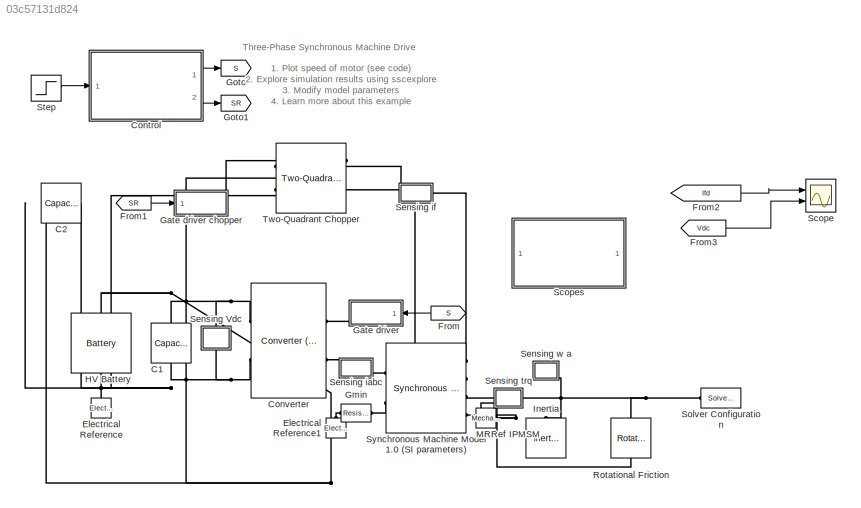
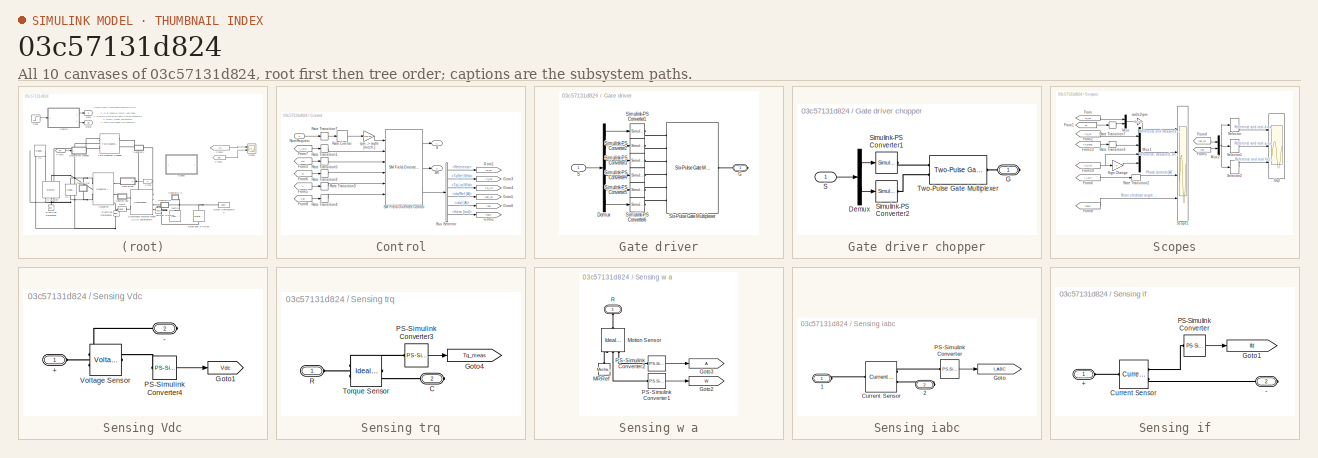
[diagram: thumbnail index - all 10 canvases of the model, root first then tree order]
MODEL slx_03c57131d824
KIND model
CONFIG AbsTol = auto
CONFIG EnableMultiTasking = on
CONFIG FixedStep = Ts
CONFIG MaxStep = auto
CONFIG MinStep = auto
CONFIG PreLoadFcn = ee_sm_drive_data;
CONFIG RelTol = 1e-3
CONFIG SampleTimeConstraint = Unconstrained
CONFIG SolverName = FixedStepDiscrete
CONFIG StartTime = 0.0
CONFIG StopFcn = ee_addSimlogTimeStamp(bdroot)
CONFIG StopTime = 1
BLOCK [Reference] C1  REF=fl_lib/Electrical/Electrical Elements/Capacitor
  NameLocation = left
  Ports = [0, 0, 0, 0, 0, 1, 1]
  SourceBlock = fl_lib/Electrical/Electrical Elements/Capacitor
  SourceProductBaseCode = SS
  SourceType = Capacitor
BLOCK [Reference] C2  REF=fl_lib/Electrical/Electrical Elements/Capacitor
  Ports = [0, 0, 0, 0, 0, 1, 1]
  SourceBlock = fl_lib/Electrical/Electrical Elements/Capacitor
  SourceProductBaseCode = SS
  SourceType = Capacitor
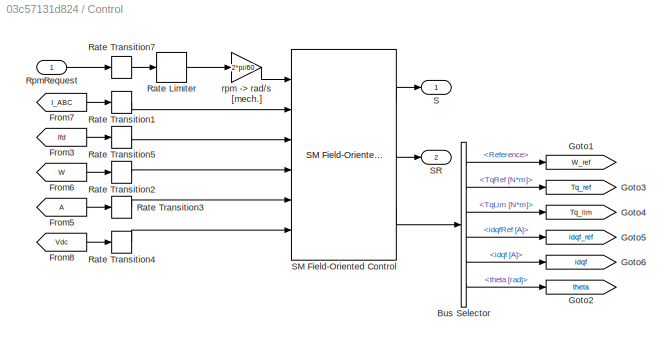
BLOCK [SubSystem] Control
  Ports = [1, 2]
  RequestExecContextInheritance = off
BLOCK [BusSelector] Control/Bus Selector
  OutputSignals = Reference,TqRef [N*m],TqLim [N*m],idqfRef [A],idqf [A],theta [rad]
  Ports = [1, 6]
BLOCK [From] Control/From3
  GotoTag = Ifd
  TagVisibility = global
BLOCK [From] Control/From5
  TagVisibility = global
BLOCK [From] Control/From6
  GotoTag = W
  TagVisibility = global
BLOCK [From] Control/From7
  GotoTag = I_ABC
  TagVisibility = global
BLOCK [From] Control/From8
  GotoTag = Vdc
  TagVisibility = global
BLOCK [Goto] Control/Goto1
  GotoTag = W_ref
  TagVisibility = global
BLOCK [Goto] Control/Goto2
  GotoTag = theta
  TagVisibility = global
BLOCK [Goto] Control/Goto3
  GotoTag = Tq_ref
  TagVisibility = global
BLOCK [Goto] Control/Goto4
  GotoTag = Tq_lim
  TagVisibility = global
BLOCK [Goto] Control/Goto5
  GotoTag = idqf_ref
  TagVisibility = global
BLOCK [Goto] Control/Goto6
  GotoTag = idqf
  TagVisibility = global
BLOCK [RateLimiter] Control/Rate Limiter
  FallingSlewLimit = -4000
  NameLocation = top
  RisingSlewLimit = 4000
  SampleTimeMode = inherited
BLOCK [RateTransition] Control/Rate Transition1
  OutPortSampleTime = Tsc
BLOCK [RateTransition] Control/Rate Transition2
  OutPortSampleTime = Tsc
BLOCK [RateTransition] Control/Rate Transition3
  OutPortSampleTime = Tsc
BLOCK [RateTransition] Control/Rate Transition4
  OutPortSampleTime = Tsc
BLOCK [RateTransition] Control/Rate Transition5
  OutPortSampleTime = Tsc
BLOCK [RateTransition] Control/Rate Transition7
  OutPortSampleTime = Tsc
BLOCK [Inport] Control/RpmRequest
BLOCK [Outport] Control/S
  VectorParamsAs1DForOutWhenUnconnected = off
BLOCK [Reference] Control/SM Field-Oriented Control  REF=eeSmFieldOrientedControl/SM Field-Oriented
Control
  Ports = [6, 3]
  SourceBlock = eeSmFieldOrientedControl/SM Field-Oriented\nControl
  SourceProductBaseCode = PS
  SourceType = SM Field-Oriented Control
BLOCK [Outport] Control/SR
  Port = 2
  VectorParamsAs1DForOutWhenUnconnected = off
BLOCK [Gain] Control/rpm -> rad//s [mech.]
  Gain = 2*pi/60
  NameLocation = top
BLOCK [Reference] Converter  REF=ee_lib/Semiconductors &
Converters/Converters/Converter
(Three-Phase)
  Ports = [0, 0, 0, 0, 0, 2, 2]
  SourceBlock = ee_lib/Semiconductors &\nConverters/Converters/Converter\n(Three-Phase)
  SourceProductBaseCode = PS
  SourceType = Converter\n(Three-Phase)
BLOCK [Reference] Electrical Reference  REF=fl_lib/Electrical/Electrical Elements/Electrical Reference
  NameLocation = right
  Ports = [0, 0, 0, 0, 0, 1]
  SourceBlock = fl_lib/Electrical/Electrical Elements/Electrical Reference
  SourceProductBaseCode = SS
  SourceType = Electrical Reference
BLOCK [Reference] Electrical Reference1  REF=fl_lib/Electrical/Electrical Elements/Electrical Reference
  NameLocation = right
  Ports = [0, 0, 0, 0, 0, 1]
  SourceBlock = fl_lib/Electrical/Electrical Elements/Electrical Reference
  SourceProductBaseCode = SS
  SourceType = Electrical Reference
BLOCK [From] From
  GotoTag = S
  TagVisibility = global
BLOCK [From] From1
  GotoTag = SR
  TagVisibility = global
BLOCK [From] From2
  GotoTag = Ifd
  TagVisibility = global
BLOCK [From] From3
  GotoTag = Vdc
  TagVisibility = global
BLOCK [SubSystem] Gate driver
  Ports = [1, 0, 0, 0, 0, 0, 1]
  RequestExecContextInheritance = off
BLOCK [SubSystem] Gate driver chopper
  Ports = [1, 0, 0, 0, 0, 0, 1]
  RequestExecContextInheritance = off
BLOCK [Demux] Gate driver chopper/Demux
  Outputs = 2
  Ports = [1, 2]
BLOCK [PMIOPort] Gate driver chopper/G
  Side = Right
BLOCK [Inport] Gate driver chopper/S
BLOCK [Reference] Gate driver chopper/Simulink-PS Converter1  REF=nesl_utility/Simulink-PS
Converter
  Ports = [1, 0, 0, 0, 0, 0, 1]
  SourceBlock = nesl_utility/Simulink-PS\nConverter
  SourceProductBaseCode = PW,SS
  SourceType = Simulink-PS\nConverter
BLOCK [Reference] Gate driver chopper/Simulink-PS Converter2  REF=nesl_utility/Simulink-PS
Converter
  Ports = [1, 0, 0, 0, 0, 0, 1]
  SourceBlock = nesl_utility/Simulink-PS\nConverter
  SourceProductBaseCode = PW,SS
  SourceType = Simulink-PS\nConverter
BLOCK [Reference] Gate driver chopper/Two-Pulse Gate Multiplexer  REF=ee_lib/Semiconductors &
Converters/Converters/Two-Pulse Gate
Multiplexer
  Ports = [0, 0, 0, 0, 0, 2, 1]
  SourceBlock = ee_lib/Semiconductors &\nConverters/Converters/Two-Pulse Gate\nMultiplexer
  SourceProductBaseCode = PS
  SourceType = Two-Pulse Gate\nMultiplexer
BLOCK [Demux] Gate driver/Demux
  Outputs = 6
  Ports = [1, 6]
BLOCK [PMIOPort] Gate driver/G
  Side = Right
BLOCK [Inport] Gate driver/S
BLOCK [Reference] Gate driver/Simulink-PS Converter1  REF=nesl_utility/Simulink-PS
Converter
  Ports = [1, 0, 0, 0, 0, 0, 1]
  SourceBlock = nesl_utility/Simulink-PS\nConverter
  SourceProductBaseCode = PW,SS
  SourceType = Simulink-PS\nConverter
BLOCK [Reference] Gate driver/Simulink-PS Converter2  REF=nesl_utility/Simulink-PS
Converter
  Ports = [1, 0, 0, 0, 0, 0, 1]
  SourceBlock = nesl_utility/Simulink-PS\nConverter
  SourceProductBaseCode = PW,SS
  SourceType = Simulink-PS\nConverter
BLOCK [Reference] Gate driver/Simulink-PS Converter3  REF=nesl_utility/Simulink-PS
Converter
  Ports = [1, 0, 0, 0, 0, 0, 1]
  SourceBlock = nesl_utility/Simulink-PS\nConverter
  SourceProductBaseCode = PW,SS
  SourceType = Simulink-PS\nConverter
BLOCK [Reference] Gate driver/Simulink-PS Converter4  REF=nesl_utility/Simulink-PS
Converter
  Ports = [1, 0, 0, 0, 0, 0, 1]
  SourceBlock = nesl_utility/Simulink-PS\nConverter
  SourceProductBaseCode = PW,SS
  SourceType = Simulink-PS\nConverter
BLOCK [Reference] Gate driver/Simulink-PS Converter5  REF=nesl_utility/Simulink-PS
Converter
  Ports = [1, 0, 0, 0, 0, 0, 1]
  SourceBlock = nesl_utility/Simulink-PS\nConverter
  SourceProductBaseCode = PW,SS
  SourceType = Simulink-PS\nConverter
BLOCK [Reference] Gate driver/Simulink-PS Converter6  REF=nesl_utility/Simulink-PS
Converter
  Ports = [1, 0, 0, 0, 0, 0, 1]
  SourceBlock = nesl_utility/Simulink-PS\nConverter
  SourceProductBaseCode = PW,SS
  SourceType = Simulink-PS\nConverter
BLOCK [Reference] Gate driver/Six-Pulse Gate Multiplexer  REF=ee_lib/Semiconductors &
Converters/Converters/Six-Pulse Gate
Multiplexer
  Ports = [0, 0, 0, 0, 0, 6, 1]
  SourceBlock = ee_lib/Semiconductors &\nConverters/Converters/Six-Pulse Gate\nMultiplexer
  SourceProductBaseCode = PS
  SourceType = Six-Pulse Gate\nMultiplexer
BLOCK [Reference] Gmin  REF=fl_lib/Electrical/Electrical Elements/Resistor
  Ports = [0, 0, 0, 0, 0, 1, 1]
  SourceBlock = fl_lib/Electrical/Electrical Elements/Resistor
  SourceProductBaseCode = SS
  SourceType = Resistor
BLOCK [Goto] Goto
  GotoTag = S
  TagVisibility = global
BLOCK [Goto] Goto1
  GotoTag = SR
  TagVisibility = global
BLOCK [Reference] HV Battery  REF=ee_lib/Sources/Battery
  NameLocation = left
  Ports = [0, 0, 0, 0, 0, 1, 1]
  SourceBlock = ee_lib/Sources/Battery
  SourceProductBaseCode = PS
  SourceType = Battery
BLOCK [Reference] Inertia  REF=fl_lib/Mechanical/Rotational Elements/Inertia
  NameLocation = left
  Ports = [0, 0, 0, 0, 0, 1]
  SourceBlock = fl_lib/Mechanical/Rotational Elements/Inertia
  SourceProductBaseCode = SS
  SourceType = Inertia
BLOCK [Reference] MRRef IPMSM  REF=fl_lib/Mechanical/Rotational Elements/Mechanical
Rotational Reference
  NameLocation = top
  Ports = [0, 0, 0, 0, 0, 1]
  SourceBlock = fl_lib/Mechanical/Rotational Elements/Mechanical\nRotational Reference
  SourceProductBaseCode = SS
  SourceType = Mechanical\nRotational Reference
BLOCK [Reference] Rotational Friction  REF=fl_lib/Mechanical/Rotational Elements/Rotational Friction
  NameLocation = left
  Ports = [0, 0, 0, 0, 0, 1, 1]
  SourceBlock = fl_lib/Mechanical/Rotational Elements/Rotational Friction
  SourceProductBaseCode = SS
  SourceType = Rotational Friction
BLOCK [Scope] Scope
  Floating = off
  NumInputPorts = 2
  Ports = [2]
  ScopeSpecificationString = Simulink.scopes.TimeScopeBlockCfg('CurrentConfiguration', extmgr.ConfigurationSet(extmgr.Configuration('Core','General UI',true),extmgr.Configuration('Core','Source UI',true),extmgr.Configuration('Sources','WiredSimulink',true,'DataLoggingVariableName','ScopeData1'),extmgr.Configuration('Visuals','Time Domain',true,'SerializedDisplays',{struct('MinYLimReal','13.21811','MaxYLimReal','21.69669','YLa...<+1455ch>
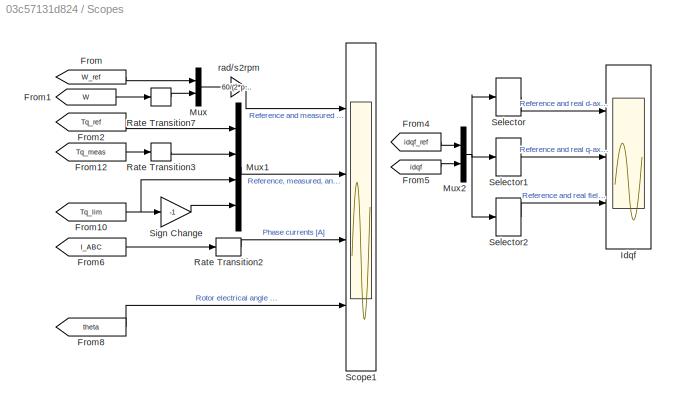
BLOCK [SubSystem] Scopes
  Ports = []
  RequestExecContextInheritance = off
BLOCK [From] Scopes/From
  GotoTag = W_ref
  TagVisibility = global
BLOCK [From] Scopes/From1
  GotoTag = W
  TagVisibility = global
BLOCK [From] Scopes/From10
  GotoTag = Tq_lim
  TagVisibility = global
BLOCK [From] Scopes/From12
  GotoTag = Tq_meas
  TagVisibility = global
BLOCK [From] Scopes/From2
  GotoTag = Tq_ref
  TagVisibility = global
BLOCK [From] Scopes/From4
  GotoTag = idqf_ref
  TagVisibility = global
BLOCK [From] Scopes/From5
  GotoTag = idqf
  TagVisibility = global
BLOCK [From] Scopes/From6
  GotoTag = I_ABC
  TagVisibility = global
BLOCK [From] Scopes/From8
  GotoTag = theta
  TagVisibility = global
BLOCK [Scope] Scopes/Idqf 
  Floating = off
  NumInputPorts = 3
  Ports = [3]
  ScopeSpecificationString = Simulink.scopes.TimeScopeBlockCfg('CurrentConfiguration', extmgr.ConfigurationSet(extmgr.Configuration('Core','General UI',true),extmgr.Configuration('Core','Source UI',true),extmgr.Configuration('Sources','WiredSimulink',true,'DataLoggingVariableName','ScopeData1','DataLoggingSaveFormat','Array','DataLoggingDecimation','1','DataLoggingDecimateData',true),extmgr.Configuration('Visuals','Time Domai...<+3040ch>
BLOCK [Mux] Scopes/Mux
  DisplayOption = bar
  Inputs = 2
  Ports = [2, 1]
BLOCK [Mux] Scopes/Mux1
  DisplayOption = bar
  Ports = [4, 1]
BLOCK [Mux] Scopes/Mux2
  DisplayOption = bar
  Inputs = 2
  Ports = [2, 1]
BLOCK [RateTransition] Scopes/Rate Transition2
BLOCK [RateTransition] Scopes/Rate Transition3
BLOCK [RateTransition] Scopes/Rate Transition7
BLOCK [Scope] Scopes/Scope1
  Floating = off
  NumInputPorts = 4
  Ports = [4]
  ScopeSpecificationString = Simulink.scopes.TimeScopeBlockCfg('CurrentConfiguration', extmgr.ConfigurationSet(extmgr.Configuration('Core','General UI',true),extmgr.Configuration('Core','Source UI',true),extmgr.Configuration('Sources','WiredSimulink',true,'DataLoggingVariableName','ScopeData2','DataLoggingSaveFormat','Array','DataLoggingDecimation','1','DataLoggingDecimateData',true),extmgr.Configuration('Visuals','Time Domai...<+3908ch>
BLOCK [Selector] Scopes/Selector
  IndexOptions = Index vector (dialog)
  Indices = [1 4]
  InputPortWidth = 6
  OutputSizes = 1
  Ports = [1, 1]
BLOCK [Selector] Scopes/Selector1
  IndexOptions = Index vector (dialog)
  Indices = [2 5]
  InputPortWidth = 6
  OutputSizes = 1
  Ports = [1, 1]
BLOCK [Selector] Scopes/Selector2
  IndexOptions = Index vector (dialog)
  Indices = [3 6]
  InputPortWidth = 6
  OutputSizes = 1
  Ports = [1, 1]
BLOCK [Gain] Scopes/Sign Change
  Gain = -1
BLOCK [Gain] Scopes/rad//s2rpm
  Gain = 60/(2*pi)
  NameLocation = top
BLOCK [SubSystem] Sensing Vdc
  NameLocation = right
  Ports = [0, 0, 0, 0, 0, 1, 1]
  RequestExecContextInheritance = off
BLOCK [PMIOPort] Sensing Vdc/+
  Side = Left
BLOCK [PMIOPort] Sensing Vdc/-
  Port = 2
  Side = Right
BLOCK [Goto] Sensing Vdc/Goto1
  GotoTag = Vdc
  TagVisibility = global
BLOCK [Reference] Sensing Vdc/PS-Simulink Converter4  REF=nesl_utility/PS-Simulink
Converter
  Ports = [0, 1, 0, 0, 0, 1]
  SourceBlock = nesl_utility/PS-Simulink\nConverter
  SourceProductBaseCode = PW,SS
  SourceType = PS-Simulink\nConverter
BLOCK [Reference] Sensing Vdc/Voltage Sensor  REF=fl_lib/Electrical/Electrical Sensors/Voltage Sensor
  Ports = [0, 0, 0, 0, 0, 1, 2]
  SourceBlock = fl_lib/Electrical/Electrical Sensors/Voltage Sensor
  SourceProductBaseCode = SS
  SourceType = Voltage Sensor
BLOCK [SubSystem] Sensing iabc
  Ports = [0, 0, 0, 0, 0, 1, 1]
  RequestExecContextInheritance = off
BLOCK [PMIOPort] Sensing iabc/1
  Side = Left
BLOCK [PMIOPort] Sensing iabc/2
  Port = 2
  Side = Right
BLOCK [Reference] Sensing iabc/Current Sensor  REF=ee_lib/Sensors &
Transducers/Current Sensor
(Three-Phase)
  Ports = [0, 0, 0, 0, 0, 1, 2]
  SourceBlock = ee_lib/Sensors &\nTransducers/Current Sensor\n(Three-Phase)
  SourceProductBaseCode = PS
  SourceType = Current Sensor\n(Three-Phase)
BLOCK [Goto] Sensing iabc/Goto
  GotoTag = I_ABC
  TagVisibility = global
BLOCK [Reference] Sensing iabc/PS-Simulink Converter  REF=nesl_utility/PS-Simulink
Converter
  Ports = [0, 1, 0, 0, 0, 1]
  SourceBlock = nesl_utility/PS-Simulink\nConverter
  SourceProductBaseCode = PW,SS
  SourceType = PS-Simulink\nConverter
BLOCK [SubSystem] Sensing if
  Ports = [0, 0, 0, 0, 0, 1, 1]
  RequestExecContextInheritance = off
BLOCK [PMIOPort] Sensing if/+
  Side = Left
BLOCK [PMIOPort] Sensing if/-
  Port = 2
  Side = Right
BLOCK [Reference] Sensing if/Current Sensor  REF=fl_lib/Electrical/Electrical Sensors/Current Sensor
  Ports = [0, 0, 0, 0, 0, 1, 2]
  SourceBlock = fl_lib/Electrical/Electrical Sensors/Current Sensor
  SourceProductBaseCode = SS
  SourceType = Current Sensor
BLOCK [Goto] Sensing if/Goto1
  GotoTag = Ifd
  TagVisibility = global
BLOCK [Reference] Sensing if/PS-Simulink Converter  REF=nesl_utility/PS-Simulink
Converter
  Ports = [0, 1, 0, 0, 0, 1]
  SourceBlock = nesl_utility/PS-Simulink\nConverter
  SourceProductBaseCode = PW,SS
  SourceType = PS-Simulink\nConverter
BLOCK [SubSystem] Sensing trq
  Ports = [0, 0, 0, 0, 0, 1, 1]
  RequestExecContextInheritance = off
BLOCK [PMIOPort] Sensing trq/C
  Port = 2
  Side = Right
BLOCK [Goto] Sensing trq/Goto4
  GotoTag = Tq_meas
  TagVisibility = global
BLOCK [Reference] Sensing trq/PS-Simulink Converter3  REF=nesl_utility/PS-Simulink
Converter
  Ports = [0, 1, 0, 0, 0, 1]
  SourceBlock = nesl_utility/PS-Simulink\nConverter
  SourceProductBaseCode = PW,SS
  SourceType = PS-Simulink\nConverter
BLOCK [PMIOPort] Sensing trq/R
  Side = Left
BLOCK [Reference] Sensing trq/Torque Sensor  REF=fl_lib/Mechanical/Mechanical Sensors/Ideal Torque Sensor
  Ports = [0, 0, 0, 0, 0, 1, 2]
  SourceBlock = fl_lib/Mechanical/Mechanical Sensors/Ideal Torque Sensor
  SourceProductBaseCode = SS
  SourceType = Ideal Torque Sensor
BLOCK [SubSystem] Sensing w a
  NameLocation = right
  Ports = [0, 0, 0, 0, 0, 1]
  RequestExecContextInheritance = off
BLOCK [Goto] Sensing w a/Goto2
  GotoTag = W
  TagVisibility = global
BLOCK [Goto] Sensing w a/Goto3
  TagVisibility = global
BLOCK [Reference] Sensing w a/MRRef  REF=fl_lib/Mechanical/Rotational Elements/Mechanical
Rotational Reference
  NameLocation = left
  Ports = [0, 0, 0, 0, 0, 1]
  SourceBlock = fl_lib/Mechanical/Rotational Elements/Mechanical\nRotational Reference
  SourceProductBaseCode = SS
  SourceType = Mechanical\nRotational Reference
BLOCK [Reference] Sensing w a/Motion Sensor  REF=fl_lib/Mechanical/Mechanical Sensors/Ideal Rotational
Motion Sensor
  NameLocation = right
  Ports = [0, 0, 0, 0, 0, 1, 3]
  SourceBlock = fl_lib/Mechanical/Mechanical Sensors/Ideal Rotational\nMotion Sensor
  SourceProductBaseCode = SS
  SourceType = Ideal Rotational\nMotion Sensor
BLOCK [Reference] Sensing w a/PS-Simulink Converter1  REF=nesl_utility/PS-Simulink
Converter
  Ports = [0, 1, 0, 0, 0, 1]
  SourceBlock = nesl_utility/PS-Simulink\nConverter
  SourceProductBaseCode = PW,SS
  SourceType = PS-Simulink\nConverter
BLOCK [Reference] Sensing w a/PS-Simulink Converter2  REF=nesl_utility/PS-Simulink
Converter
  Ports = [0, 1, 0, 0, 0, 1]
  SourceBlock = nesl_utility/PS-Simulink\nConverter
  SourceProductBaseCode = PW,SS
  SourceType = PS-Simulink\nConverter
BLOCK [PMIOPort] Sensing w a/R
  NameLocation = right
  Side = Left
BLOCK [Reference] Solver Configuration  REF=nesl_utility/Solver
Configuration
  Ports = [0, 0, 0, 0, 0, 0, 1]
  SourceBlock = nesl_utility/Solver\nConfiguration
  SourceProductBaseCode = PW,SS
  SourceType = Solver\nConfiguration
BLOCK [Step] Step
  After = 1500
  SampleTime = 0
  Time = 0.1
BLOCK [Reference] Synchronous Machine Model 1.0 (SI parameters)  REF=ee_lib/Electromechanical/Synchronous/Synchronous Machine
Model 1.0
  Ports = [0, 0, 0, 0, 0, 2, 4]
  SourceBlock = ee_lib/Electromechanical/Synchronous/Synchronous Machine\nModel 1.0
  SourceProductBaseCode = PS
  SourceType = Synchronous Machine\nModel 1.0
BLOCK [Reference] Two-Quadrant Chopper  REF=ee_lib/Semiconductors &
Converters/Converters/Two-Quadrant Chopper
  Ports = [0, 0, 0, 0, 0, 3, 2]
  SourceBlock = ee_lib/Semiconductors &\nConverters/Converters/Two-Quadrant Chopper
  SourceProductBaseCode = PS
  SourceType = Two-Quadrant Chopper
ANNOTATION (root): 1. Plot speed of motor ( see code ) 2. Explore simulation results using sscexplore 3. Modify model parameters 4. Learn more about this example
ANNOTATION (root): Three-Phase Synchronous Machine Drive
LINE Control/Bus Selector:1 -> Control/Goto1:1
LINE Control/Bus Selector:2 -> Control/Goto3:1
LINE Control/Bus Selector:3 -> Control/Goto4:1
LINE Control/Bus Selector:4 -> Control/Goto5:1
LINE Control/Bus Selector:5 -> Control/Goto6:1
LINE Control/Bus Selector:6 -> Control/Goto2:1
LINE Control/From3:1 -> Control/Rate Transition5:1
LINE Control/From5:1 -> Control/Rate Transition3:1
LINE Control/From6:1 -> Control/Rate Transition2:1
LINE Control/From7:1 -> Control/Rate Transition1:1
LINE Control/From8:1 -> Control/Rate Transition4:1
LINE Control/Rate Limiter:1 -> Control/rpm -> rad//s [mech.]:1
LINE Control/Rate Transition1:1 -> Control/SM Field-Oriented Control:2
LINE Control/Rate Transition2:1 -> Control/SM Field-Oriented Control:4
LINE Control/Rate Transition3:1 -> Control/SM Field-Oriented Control:5
LINE Control/Rate Transition4:1 -> Control/SM Field-Oriented Control:6
LINE Control/Rate Transition5:1 -> Control/SM Field-Oriented Control:3
LINE Control/Rate Transition7:1 -> Control/Rate Limiter:1
LINE Control/RpmRequest:1 -> Control/Rate Transition7:1
LINE Control/SM Field-Oriented Control:1 -> Control/S:1
LINE Control/SM Field-Oriented Control:2 -> Control/SR:1
LINE Control/SM Field-Oriented Control:3 -> Control/Bus Selector:1
LINE Control/rpm -> rad//s [mech.]:1 -> Control/SM Field-Oriented Control:1
LINE Control:1 -> Goto:1
LINE Control:2 -> Goto1:1
LINE From1:1 -> Gate driver chopper:1
LINE From2:1 -> Scope:1
LINE From3:1 -> Scope:2
LINE From:1 -> Gate driver:1
LINE Gate driver chopper/Demux:1 -> Gate driver chopper/Simulink-PS Converter1:1
LINE Gate driver chopper/Demux:2 -> Gate driver chopper/Simulink-PS Converter2:1
LINE Gate driver chopper/S:1 -> Gate driver chopper/Demux:1
LINE Gate driver/Demux:1 -> Gate driver/Simulink-PS Converter1:1
LINE Gate driver/Demux:2 -> Gate driver/Simulink-PS Converter2:1
LINE Gate driver/Demux:3 -> Gate driver/Simulink-PS Converter3:1
LINE Gate driver/Demux:4 -> Gate driver/Simulink-PS Converter4:1
LINE Gate driver/Demux:5 -> Gate driver/Simulink-PS Converter5:1
LINE Gate driver/Demux:6 -> Gate driver/Simulink-PS Converter6:1
LINE Gate driver/S:1 -> Gate driver/Demux:1
NET Scopes/From10:1 -> Scopes/Mux1:3, Scopes/Sign Change:1
LINE Scopes/From12:1 -> Scopes/Rate Transition3:1
LINE Scopes/From1:1 -> Scopes/Rate Transition7:1
LINE Scopes/From2:1 -> Scopes/Mux1:1
LINE Scopes/From4:1 -> Scopes/Mux2:1
LINE Scopes/From5:1 -> Scopes/Mux2:2
LINE Scopes/From6:1 -> Scopes/Rate Transition2:1
LINE Scopes/From8:1 -> Scopes/Scope1:4
LINE Scopes/From:1 -> Scopes/Mux:1
LINE Scopes/Mux1:1 -> Scopes/Scope1:2
NET Scopes/Mux2:1 -> Scopes/Selector1:1, Scopes/Selector2:1, Scopes/Selector:1
LINE Scopes/Mux:1 -> Scopes/rad//s2rpm:1
LINE Scopes/Rate Transition2:1 -> Scopes/Scope1:3
LINE Scopes/Rate Transition3:1 -> Scopes/Mux1:2
LINE Scopes/Rate Transition7:1 -> Scopes/Mux:2
LINE Scopes/Selector1:1 -> Scopes/Idqf :2
LINE Scopes/Selector2:1 -> Scopes/Idqf :3
LINE Scopes/Selector:1 -> Scopes/Idqf :1
LINE Scopes/Sign Change:1 -> Scopes/Mux1:4
LINE Scopes/rad//s2rpm:1 -> Scopes/Scope1:1
LINE Sensing Vdc/PS-Simulink Converter4:1 -> Sensing Vdc/Goto1:1
LINE Sensing iabc/PS-Simulink Converter:1 -> Sensing iabc/Goto:1
LINE Sensing if/PS-Simulink Converter:1 -> Sensing if/Goto1:1
LINE Sensing trq/PS-Simulink Converter3:1 -> Sensing trq/Goto4:1
LINE Sensing w a/PS-Simulink Converter1:1 -> Sensing w a/Goto2:1
LINE Sensing w a/PS-Simulink Converter2:1 -> Sensing w a/Goto3:1
LINE Step:1 -> Control:1
PNET net1: C1:LConn1 -- C2:LConn1 -- Converter:RConn1 -- HV Battery:LConn1 -- Sensing Vdc:LConn1 -- Two-Quadrant Chopper:LConn2
PNET net2: C1:RConn1 -- C2:RConn1 -- Converter:RConn2 -- Electrical Reference:LConn1 -- HV Battery:RConn1 -- Sensing Vdc:RConn1 -- Two-Quadrant Chopper:LConn3
PLINE Converter:LConn1 -- Gate driver:RConn1
PLINE Converter:LConn2 -- Sensing iabc:LConn1
PLINE Electrical Reference1:LConn1 -- Gmin:LConn1
PLINE Gate driver chopper/G:RConn1 -- Gate driver chopper/Two-Pulse Gate Multiplexer:RConn1
PLINE Gate driver chopper/Simulink-PS Converter1:RConn1 -- Gate driver chopper/Two-Pulse Gate Multiplexer:LConn1
PLINE Gate driver chopper/Simulink-PS Converter2:RConn1 -- Gate driver chopper/Two-Pulse Gate Multiplexer:LConn2
PLINE Gate driver chopper:RConn1 -- Two-Quadrant Chopper:LConn1
PLINE Gate driver/G:RConn1 -- Gate driver/Six-Pulse Gate Multiplexer:RConn1
PLINE Gate driver/Simulink-PS Converter1:RConn1 -- Gate driver/Six-Pulse Gate Multiplexer:LConn1
PLINE Gate driver/Simulink-PS Converter2:RConn1 -- Gate driver/Six-Pulse Gate Multiplexer:LConn2
PLINE Gate driver/Simulink-PS Converter3:RConn1 -- Gate driver/Six-Pulse Gate Multiplexer:LConn3
PLINE Gate driver/Simulink-PS Converter4:RConn1 -- Gate driver/Six-Pulse Gate Multiplexer:LConn4
PLINE Gate driver/Simulink-PS Converter5:RConn1 -- Gate driver/Six-Pulse Gate Multiplexer:LConn5
PLINE Gate driver/Simulink-PS Converter6:RConn1 -- Gate driver/Six-Pulse Gate Multiplexer:LConn6
PLINE Gmin:RConn1 -- Synchronous Machine Model 1.0 (SI parameters):LConn2
PNET net3: Inertia:LConn1 -- Rotational Friction:LConn1 -- Sensing trq:RConn1 -- Sensing w a:LConn1 -- Solver Configuration:RConn1
PNET net4: MRRef IPMSM:LConn1 -- Rotational Friction:RConn1 -- Synchronous Machine Model 1.0 (SI parameters):RConn4
PLINE Sensing Vdc/+:RConn1 -- Sensing Vdc/Voltage Sensor:LConn1
PLINE Sensing Vdc/-:RConn1 -- Sensing Vdc/Voltage Sensor:RConn2
PLINE Sensing Vdc/PS-Simulink Converter4:LConn1 -- Sensing Vdc/Voltage Sensor:RConn1
PLINE Sensing iabc/1:RConn1 -- Sensing iabc/Current Sensor:LConn1
PLINE Sensing iabc/2:RConn1 -- Sensing iabc/Current Sensor:RConn2
PLINE Sensing iabc/Current Sensor:RConn1 -- Sensing iabc/PS-Simulink Converter:LConn1
PLINE Sensing iabc:RConn1 -- Synchronous Machine Model 1.0 (SI parameters):LConn1
PLINE Sensing if/+:RConn1 -- Sensing if/Current Sensor:LConn1
PLINE Sensing if/-:RConn1 -- Sensing if/Current Sensor:RConn2
PLINE Sensing if/Current Sensor:RConn1 -- Sensing if/PS-Simulink Converter:LConn1
PLINE Sensing if:LConn1 -- Two-Quadrant Chopper:RConn1
PLINE Sensing if:RConn1 -- Synchronous Machine Model 1.0 (SI parameters):RConn1
PLINE Sensing trq/C:RConn1 -- Sensing trq/Torque Sensor:RConn1
PLINE Sensing trq/PS-Simulink Converter3:LConn1 -- Sensing trq/Torque Sensor:RConn2
PLINE Sensing trq/R:RConn1 -- Sensing trq/Torque Sensor:LConn1
PLINE Sensing trq:LConn1 -- Synchronous Machine Model 1.0 (SI parameters):RConn3
PLINE Sensing w a/MRRef:LConn1 -- Sensing w a/Motion Sensor:RConn1
PLINE Sensing w a/Motion Sensor:LConn1 -- Sensing w a/R:RConn1
PLINE Sensing w a/Motion Sensor:RConn2 -- Sensing w a/PS-Simulink Converter1:LConn1
PLINE Sensing w a/Motion Sensor:RConn3 -- Sensing w a/PS-Simulink Converter2:LConn1
PLINE Synchronous Machine Model 1.0 (SI parameters):RConn2 -- Two-Quadrant Chopper:RConn2
note: NET lines group one-source signal fan-out (src -> all destinations, sorted); 1:1 wires keep LINE; PNET lines group multi-terminal physical nets as a canonical sorted terminal list (undirected conserving connections); 2-terminal nets keep the pairwise PLINE form
